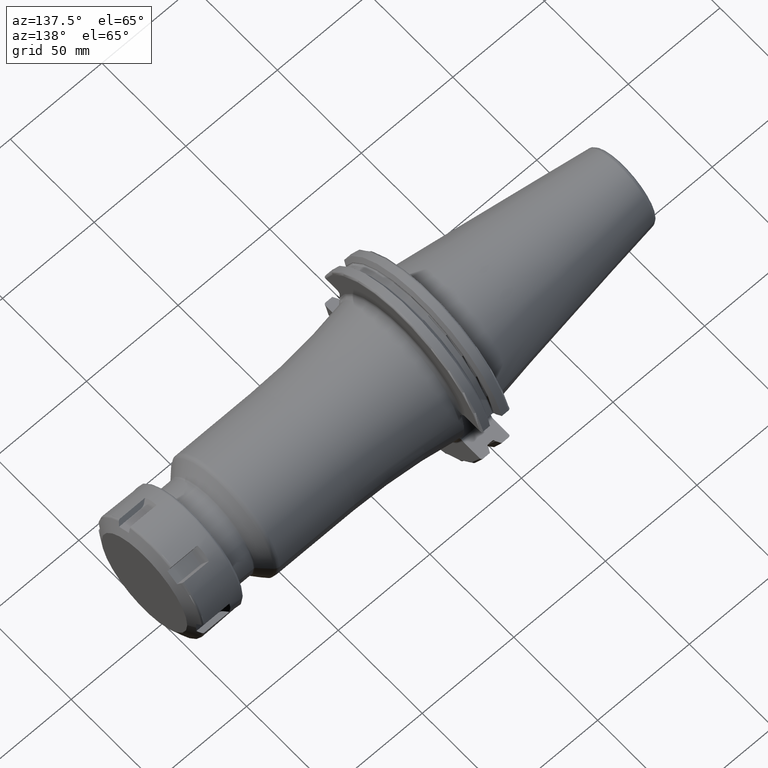
[diagram: clean part render]
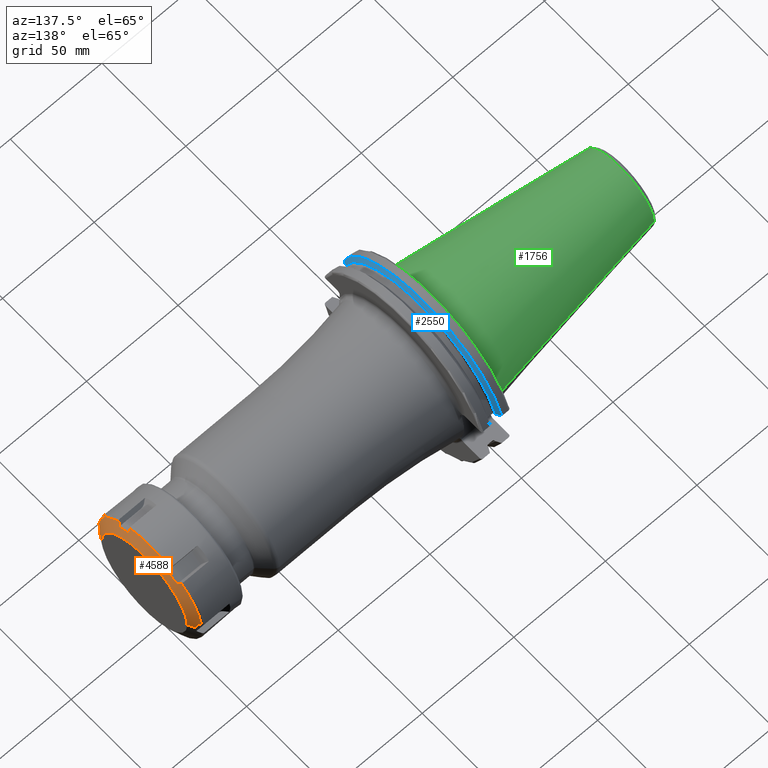
[diagram: same view with three faces highlighted in distinct colors, each labeled with its STEP entity id]
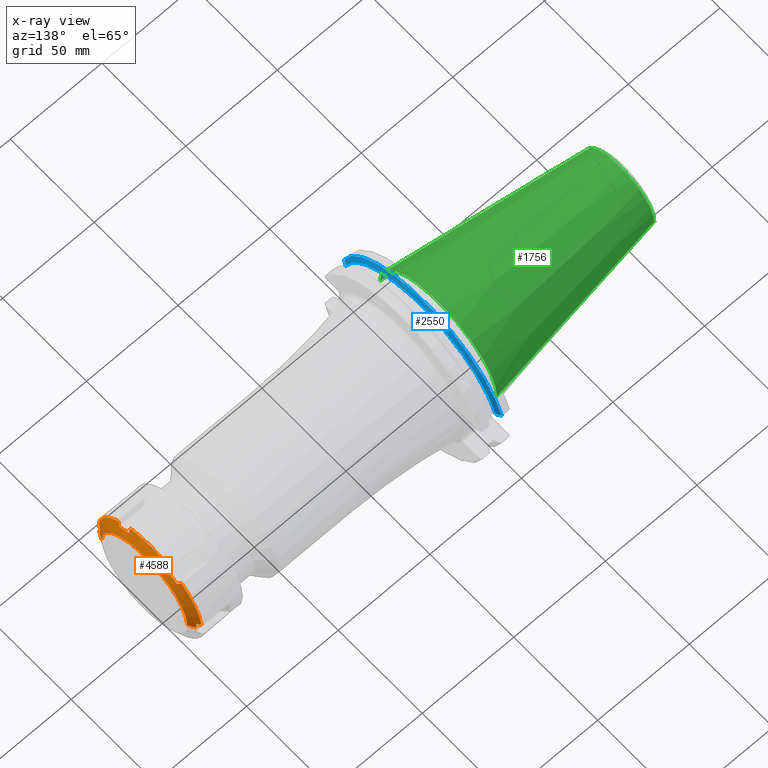
[diagram: x-ray of the same camera — body ghosted, the three highlighted faces saturated]
A machine part, auxiliary view with three faces highlighted in distinct colors.
The next image is the same camera in x-ray (body ghosted, the three faces saturated) — at least one of them is partly hidden behind the body in this view.
Their STEP definitions:

[orange] entity #4588 — the highlighted conical surface has half-angle 60 deg.
#3505=DIRECTION('',(-5.E-1,-8.660254037844E-1,0.E0));
#3506=VECTOR('',#3505,3.752776749692E0);
#3507=CARTESIAN_POINT('',(2.55E1,-2.55E1,0.E0));
#3508=LINE('',#3507,#3506);
#3514=DIRECTION('',(-5.E-1,8.660254037844E-1,0.E0));
#3515=VECTOR('',#3514,3.752776749692E0);
#3516=CARTESIAN_POINT('',(2.55E1,2.55E1,0.E0));
#3517=LINE('',#3516,#3515);
#3790=CARTESIAN_POINT('',(2.351130782476E1,-2.874999999997E1,3.35E0));
#3791=CARTESIAN_POINT('',(2.353617695757E1,-2.874999999997E1,2.977828809184E0));
#3792=CARTESIAN_POINT('',(2.357773662637E1,-2.874999999997E1,2.233458033279E0));
#3793=CARTESIAN_POINT('',(2.361525848375E1,-2.874999999997E1,1.116817767542E0));
#3794=CARTESIAN_POINT('',(2.362361162515E1,-2.874999999997E1,
3.722872262064E-1));
#3795=CARTESIAN_POINT('',(2.362361162515E1,-2.874999999997E1,0.E0));
#3797=CARTESIAN_POINT('',(2.239674230313E1,-3.063769284335E1,3.820654686622E0));
#3798=CARTESIAN_POINT('',(2.258533438069E1,-3.031843804101E1,3.741055524357E0));
#3799=CARTESIAN_POINT('',(2.295968976826E1,-2.968456909419E1,3.583014245782E0));
#3800=CARTESIAN_POINT('',(2.332838053240E1,-2.905997751876E1,3.427286075687E0));
#3801=CARTESIAN_POINT('',(2.351130782476E1,-2.874999999997E1,3.35E0));
#3803=CARTESIAN_POINT('',(2.239674230313E1,0.E0,0.E0));
#3804=DIRECTION('',(-1.E0,0.E0,0.E0));
#3805=DIRECTION('',(0.E0,-9.923139382473E-1,1.237459007814E-1));
#3806=AXIS2_PLACEMENT_3D('',#3803,#3804,#3805);
#3808=CARTESIAN_POINT('',(2.351130782476E1,-1.727618510266E1,2.322323035877E1));
#3809=CARTESIAN_POINT('',(2.332842823305E1,-1.749804769833E1,2.345297580209E1));
#3810=CARTESIAN_POINT('',(2.295978520802E1,-1.794515018410E1,2.391596397947E1));
#3811=CARTESIAN_POINT('',(2.258538211756E1,-1.839901028735E1,2.438594987460E1));
#3812=CARTESIAN_POINT('',(2.239674230313E1,-1.862763043938E1,2.462269297237E1));
#3814=CARTESIAN_POINT('',(2.351130782476E1,-1.147381489730E1,2.657323035877E1));
#3815=CARTESIAN_POINT('',(2.356105051412E1,-1.211849164162E1,2.620102606690E1));
#3816=CARTESIAN_POINT('',(2.362777625606E1,-1.340784245763E1,2.545661902620E1));
#3817=CARTESIAN_POINT('',(2.362777583851E1,-1.534217003691E1,2.433983447760E1));
#3818=CARTESIAN_POINT('',(2.356105010187E1,-1.663151370114E1,2.359543156598E1));
#3819=CARTESIAN_POINT('',(2.351130782476E1,-1.727618510266E1,2.322323035877E1));
#3821=CARTESIAN_POINT('',(2.239674230313E1,-1.201006240397E1,2.844334765900E1));
#3822=CARTESIAN_POINT('',(2.258533438069E1,-1.191936989944E1,2.812706530876E1));
#3823=CARTESIAN_POINT('',(2.295968976826E1,-1.173930318813E1,2.749909805885E1));
#3824=CARTESIAN_POINT('',(2.332838053240E1,-1.156187195180E1,2.688032180249E1));
#3825=CARTESIAN_POINT('',(2.351130782476E1,-1.147381489730E1,2.657323035877E1));
#3827=CARTESIAN_POINT('',(2.239674230313E1,0.E0,0.E0));
#3828=DIRECTION('',(-1.E0,0.E0,0.E0));
#3829=DIRECTION('',(0.E0,-3.889898754327E-1,9.212420294422E-1));
#3830=AXIS2_PLACEMENT_3D('',#3827,#3828,#3829);
#3832=CARTESIAN_POINT('',(2.351130782476E1,1.147381489730E1,2.657323035877E1));
#3833=CARTESIAN_POINT('',(2.332842823305E1,1.156184898978E1,2.688024172443E1));
#3834=CARTESIAN_POINT('',(2.295978520802E1,1.173925727016E1,2.749893792389E1));
#3835=CARTESIAN_POINT('',(2.258538211756E1,1.191934694315E1,2.812698525064E1));
#3836=CARTESIAN_POINT('',(2.239674230313E1,1.201006240397E1,2.844334765900E1));
#3838=CARTESIAN_POINT('',(2.351130782476E1,1.727618510266E1,2.322323035877E1));
#3839=CARTESIAN_POINT('',(2.356105051412E1,1.663150835835E1,2.359543465064E1));
#3840=CARTESIAN_POINT('',(2.362777625606E1,1.534215754233E1,2.433984169135E1));
#3841=CARTESIAN_POINT('',(2.362777583851E1,1.340782996305E1,2.545662623995E1));
#3842=CARTESIAN_POINT('',(2.356105010187E1,1.211848629883E1,2.620102915156E1));
#3843=CARTESIAN_POINT('',(2.351130782476E1,1.147381489730E1,2.657323035877E1));
#3845=CARTESIAN_POINT('',(2.239674230313E1,1.862763043938E1,2.462269297237E1));
#3846=CARTESIAN_POINT('',(2.258533438069E1,1.839906814157E1,2.438600978440E1));
#3847=CARTESIAN_POINT('',(2.295968976826E1,1.794526590606E1,2.391608381307E1));
#3848=CARTESIAN_POINT('',(2.332838053240E1,1.749810556696E1,2.345303572681E1));
#3849=CARTESIAN_POINT('',(2.351130782476E1,1.727618510266E1,2.322323035877E1));
#3851=CARTESIAN_POINT('',(2.239674230313E1,0.E0,0.E0));
#3852=DIRECTION('',(-1.E0,0.E0,0.E0));
#3853=DIRECTION('',(0.E0,6.033240628145E-1,7.974961286608E-1));
#3854=AXIS2_PLACEMENT_3D('',#3851,#3852,#3853);
#3856=CARTESIAN_POINT('',(2.351130782476E1,2.874999999997E1,3.35E0));
#3857=CARTESIAN_POINT('',(2.332842823305E1,2.905989668812E1,3.427265922344E0));
#3858=CARTESIAN_POINT('',(2.295978520802E1,2.968440745426E1,3.582973944421E0));
#3859=CARTESIAN_POINT('',(2.258538211756E1,3.031835723049E1,3.741035376033E0));
#3860=CARTESIAN_POINT('',(2.239674230313E1,3.063769284335E1,3.820654686622E0));
#3862=CARTESIAN_POINT('',(2.362361162515E1,2.874999999997E1,0.E0));
#3863=CARTESIAN_POINT('',(2.362361162515E1,2.874999999997E1,3.723033754199E-1));
#3864=CARTESIAN_POINT('',(2.361525781864E1,2.874999999997E1,1.116855572672E0));
#3865=CARTESIAN_POINT('',(2.357773435590E1,2.874999999997E1,2.233506677949E0));
#3866=CARTESIAN_POINT('',(2.353617556265E1,2.874999999997E1,2.977849684408E0));
#3867=CARTESIAN_POINT('',(2.351130782476E1,2.874999999997E1,3.35E0));
#3869=CARTESIAN_POINT('',(2.55E1,0.E0,0.E0));
#3870=DIRECTION('',(1.E0,0.E0,0.E0));
#3871=DIRECTION('',(0.E0,1.E0,0.E0));
#3872=AXIS2_PLACEMENT_3D('',#3869,#3870,#3871);
#4152=CARTESIAN_POINT('',(2.55E1,2.55E1,0.E0));
#4153=CARTESIAN_POINT('',(2.55E1,-2.55E1,0.E0));
#4154=VERTEX_POINT('',#4152);
#4155=VERTEX_POINT('',#4153);
#4164=VERTEX_POINT('',#3856);
#4165=VERTEX_POINT('',#3860);
#4166=VERTEX_POINT('',#3862);
#4190=VERTEX_POINT('',#3832);
#4191=VERTEX_POINT('',#3836);
#4192=VERTEX_POINT('',#3838);
#4193=VERTEX_POINT('',#3845);
#4205=VERTEX_POINT('',#3808);
#4206=VERTEX_POINT('',#3812);
#4207=VERTEX_POINT('',#3814);
#4208=VERTEX_POINT('',#3821);
#4220=VERTEX_POINT('',#3790);
#4221=VERTEX_POINT('',#3795);
#4222=VERTEX_POINT('',#3797);
#4557=CARTESIAN_POINT('',(2.394837115156E1,0.E0,0.E0));
#4558=DIRECTION('',(-1.E0,0.E0,0.E0));
#4559=DIRECTION('',(0.E0,1.E0,0.E0));
#4560=AXIS2_PLACEMENT_3D('',#4557,#4558,#4559);
#4561=CONICAL_SURFACE('',#4560,2.818749999998E1,6.E1);
#4563=ORIENTED_EDGE('',*,*,#4562,.F.);
#4565=ORIENTED_EDGE('',*,*,#4564,.F.);
#4566=ORIENTED_EDGE('',*,*,#4464,.T.);
#4568=ORIENTED_EDGE('',*,*,#4567,.F.);
#4570=ORIENTED_EDGE('',*,*,#4569,.F.);
#4572=ORIENTED_EDGE('',*,*,#4571,.F.);
#4573=ORIENTED_EDGE('',*,*,#4448,.T.);
#4575=ORIENTED_EDGE('',*,*,#4574,.F.);
#4576=ORIENTED_EDGE('',*,*,#4550,.F.);
#4577=ORIENTED_EDGE('',*,*,#4521,.F.);
#4578=ORIENTED_EDGE('',*,*,#4432,.T.);
#4580=ORIENTED_EDGE('',*,*,#4579,.F.);
#4582=ORIENTED_EDGE('',*,*,#4581,.F.);
#4583=ORIENTED_EDGE('',*,*,#4304,.F.);
#4584=ORIENTED_EDGE('',*,*,#4271,.T.);
#4585=ORIENTED_EDGE('',*,*,#4301,.T.);
#4586=EDGE_LOOP('',(#4563,#4565,#4566,#4568,#4570,#4572,#4573,#4575,#4576,#4577,
#4578,#4580,#4582,#4583,#4584,#4585));
#4587=FACE_OUTER_BOUND('',#4586,.F.);
#4588=ADVANCED_FACE('',(#4587),#4561,.T.);
#3796=B_SPLINE_CURVE_WITH_KNOTS('',3,(#3790,#3791,#3792,#3793,#3794,#3795),
.UNSPECIFIED.,.F.,.F.,(4,1,1,4),(0.E0,3.333333333333E-1,6.666666666667E-1,1.E0),
.UNSPECIFIED.);
#3802=B_SPLINE_CURVE_WITH_KNOTS('',3,(#3797,#3798,#3799,#3800,#3801),
.UNSPECIFIED.,.F.,.F.,(4,1,4),(0.E0,5.E-1,1.E0),.UNSPECIFIED.);
#3807=CIRCLE('',#3806,3.087499999997E1);
#3813=B_SPLINE_CURVE_WITH_KNOTS('',3,(#3808,#3809,#3810,#3811,#3812),
.UNSPECIFIED.,.F.,.F.,(4,1,4),(0.E0,5.E-1,1.E0),.UNSPECIFIED.);
#3820=B_SPLINE_CURVE_WITH_KNOTS('',3,(#3814,#3815,#3816,#3817,#3818,#3819),
.UNSPECIFIED.,.F.,.F.,(4,1,1,4),(0.E0,3.333333333333E-1,6.666666666667E-1,1.E0),
.UNSPECIFIED.);
#3826=B_SPLINE_CURVE_WITH_KNOTS('',3,(#3821,#3822,#3823,#3824,#3825),
.UNSPECIFIED.,.F.,.F.,(4,1,4),(0.E0,5.E-1,1.E0),.UNSPECIFIED.);
#3831=CIRCLE('',#3830,3.087499999997E1);
#3837=B_SPLINE_CURVE_WITH_KNOTS('',3,(#3832,#3833,#3834,#3835,#3836),
.UNSPECIFIED.,.F.,.F.,(4,1,4),(0.E0,5.E-1,1.E0),.UNSPECIFIED.);
#3844=B_SPLINE_CURVE_WITH_KNOTS('',3,(#3838,#3839,#3840,#3841,#3842,#3843),
.UNSPECIFIED.,.F.,.F.,(4,1,1,4),(0.E0,3.333333333333E-1,6.666666666667E-1,1.E0),
.UNSPECIFIED.);
#3850=B_SPLINE_CURVE_WITH_KNOTS('',3,(#3845,#3846,#3847,#3848,#3849),
.UNSPECIFIED.,.F.,.F.,(4,1,4),(0.E0,5.E-1,1.E0),.UNSPECIFIED.);
#3855=CIRCLE('',#3854,3.087499999997E1);
#3861=B_SPLINE_CURVE_WITH_KNOTS('',3,(#3856,#3857,#3858,#3859,#3860),
.UNSPECIFIED.,.F.,.F.,(4,1,4),(0.E0,5.E-1,1.E0),.UNSPECIFIED.);
#3868=B_SPLINE_CURVE_WITH_KNOTS('',3,(#3862,#3863,#3864,#3865,#3866,#3867),
.UNSPECIFIED.,.F.,.F.,(4,1,1,4),(0.E0,3.333333333333E-1,6.666666666667E-1,1.E0),
.UNSPECIFIED.);
#3873=CIRCLE('',#3872,2.55E1);
#4271=EDGE_CURVE('',#4154,#4155,#3873,.T.);
#4301=EDGE_CURVE('',#4155,#4221,#3508,.T.);
#4304=EDGE_CURVE('',#4154,#4166,#3517,.T.);
#4432=EDGE_CURVE('',#4193,#4165,#3855,.T.);
#4448=EDGE_CURVE('',#4208,#4191,#3831,.T.);
#4464=EDGE_CURVE('',#4222,#4206,#3807,.T.);
#4521=EDGE_CURVE('',#4193,#4192,#3850,.T.);
#4550=EDGE_CURVE('',#4192,#4190,#3844,.T.);
#4562=EDGE_CURVE('',#4220,#4221,#3796,.T.);
#4564=EDGE_CURVE('',#4222,#4220,#3802,.T.);
#4567=EDGE_CURVE('',#4205,#4206,#3813,.T.);
#4569=EDGE_CURVE('',#4207,#4205,#3820,.T.);
#4571=EDGE_CURVE('',#4208,#4207,#3826,.T.);
#4574=EDGE_CURVE('',#4190,#4191,#3837,.T.);
#4579=EDGE_CURVE('',#4164,#4165,#3861,.T.);
#4581=EDGE_CURVE('',#4166,#4164,#3868,.T.);

[blue] entity #2550 — the highlighted conical surface has half-angle 60 deg.
#652=CARTESIAN_POINT('',(7.934621614173E0,0.E0,0.E0));
#653=DIRECTION('',(1.E0,0.E0,0.E0));
#654=DIRECTION('',(0.E0,9.643354064066E-1,2.646832521159E-1));
#655=AXIS2_PLACEMENT_3D('',#652,#653,#654);
#679=CARTESIAN_POINT('',(7.934621614173E0,4.699929686974E1,1.29E1));
#680=CARTESIAN_POINT('',(8.085480915039E0,4.672833723043E1,1.29E1));
#681=CARTESIAN_POINT('',(8.384988643814E0,4.619006057422E1,1.29E1));
#682=CARTESIAN_POINT('',(8.827579780447E0,4.539363402665E1,1.29E1));
#683=CARTESIAN_POINT('',(9.118260754177E0,4.486988275438E1,1.29E1));
#684=CARTESIAN_POINT('',(9.2625E0,4.460981716077E1,1.29E1));
#686=CARTESIAN_POINT('',(9.2625E0,-4.460981716077E1,1.29E1));
#687=CARTESIAN_POINT('',(9.118283773553E0,-4.486984125009E1,1.29E1));
#688=CARTESIAN_POINT('',(8.827633549554E0,-4.539353719098E1,1.29E1));
#689=CARTESIAN_POINT('',(8.385043355543E0,-4.618996220278E1,1.29E1));
#690=CARTESIAN_POINT('',(8.085504386120E0,-4.672829507383E1,1.29E1));
#691=CARTESIAN_POINT('',(7.934621614173E0,-4.699929686974E1,1.29E1));
#701=CARTESIAN_POINT('',(9.2625E0,0.E0,0.E0));
#702=DIRECTION('',(1.E0,0.E0,0.E0));
#703=DIRECTION('',(0.E0,9.606411165078E-1,2.777924499957E-1));
#704=AXIS2_PLACEMENT_3D('',#701,#702,#703);
#1484=CARTESIAN_POINT('',(9.2625E0,4.460981716077E1,1.29E1));
#1486=VERTEX_POINT('',#1484);
#1496=CARTESIAN_POINT('',(9.2625E0,-4.460981716077E1,1.29E1));
#1498=VERTEX_POINT('',#1496);
#1522=VERTEX_POINT('',#679);
#1523=VERTEX_POINT('',#691);
#2538=CARTESIAN_POINT('',(8.598560807087E0,0.E0,0.E0));
#2539=DIRECTION('',(-1.E0,0.E0,0.E0));
#2540=DIRECTION('',(0.E0,1.E0,0.E0));
#2541=AXIS2_PLACEMENT_3D('',#2538,#2539,#2540);
#2542=CONICAL_SURFACE('',#2541,4.758752358474E1,6.E1);
#2543=ORIENTED_EDGE('',*,*,#2477,.T.);
#2545=ORIENTED_EDGE('',*,*,#2544,.T.);
#2546=ORIENTED_EDGE('',*,*,#2405,.T.);
#2547=ORIENTED_EDGE('',*,*,#2518,.F.);
#2548=EDGE_LOOP('',(#2543,#2545,#2546,#2547));
#2549=FACE_OUTER_BOUND('',#2548,.F.);
#2550=ADVANCED_FACE('',(#2549),#2542,.T.);
#656=CIRCLE('',#655,4.87375E1);
#685=B_SPLINE_CURVE_WITH_KNOTS('',3,(#679,#680,#681,#682,#683,#684),
.UNSPECIFIED.,.F.,.F.,(4,1,1,4),(0.E0,3.333333333333E-1,6.666666666667E-1,1.E0),
.UNSPECIFIED.);
#692=B_SPLINE_CURVE_WITH_KNOTS('',3,(#686,#687,#688,#689,#690,#691),
.UNSPECIFIED.,.F.,.F.,(4,1,1,4),(0.E0,3.333333333333E-1,6.666666666667E-1,1.E0),
.UNSPECIFIED.);
#705=CIRCLE('',#704,4.643754716948E1);
#2405=EDGE_CURVE('',#1498,#1523,#692,.T.);
#2477=EDGE_CURVE('',#1522,#1486,#685,.T.);
#2518=EDGE_CURVE('',#1522,#1523,#656,.T.);
#2544=EDGE_CURVE('',#1486,#1498,#705,.T.);

[green] entity #1756 — the highlighted conical surface has half-angle 8.298 deg.
#37=CARTESIAN_POINT('',(-9.967471700563E1,0.E0,0.E0));
#38=DIRECTION('',(1.E0,0.E0,0.E0));
#39=DIRECTION('',(0.E0,1.E0,0.E0));
#40=AXIS2_PLACEMENT_3D('',#37,#38,#39);
#42=CARTESIAN_POINT('',(-4.896823332305E-1,0.E0,0.E0));
#43=DIRECTION('',(1.E0,0.E0,0.E0));
#44=DIRECTION('',(0.E0,1.E0,0.E0));
#45=AXIS2_PLACEMENT_3D('',#42,#43,#44);
#47=DIRECTION('',(-9.895312636440E-1,-1.443186691705E-1,0.E0));
#48=VECTOR('',#47,1.002343617797E2);
#49=CARTESIAN_POINT('',(-4.896823332305E-1,3.485358204157E1,0.E0));
#50=LINE('',#49,#48);
#51=DIRECTION('',(-9.895312636440E-1,1.443186691705E-1,0.E0));
#52=VECTOR('',#51,1.002343617797E2);
#53=CARTESIAN_POINT('',(-4.896823332305E-1,-3.485358204157E1,0.E0));
#54=LINE('',#53,#52);
#1412=CARTESIAN_POINT('',(-9.967471700563E1,2.038789234437E1,0.E0));
#1414=VERTEX_POINT('',#1412);
#1416=CARTESIAN_POINT('',(-9.967471700563E1,-2.038789234437E1,0.E0));
#1418=VERTEX_POINT('',#1416);
#1480=CARTESIAN_POINT('',(-4.896823332305E-1,3.485358204157E1,0.E0));
#1481=VERTEX_POINT('',#1480);
#1482=CARTESIAN_POINT('',(-4.896823332305E-1,-3.485358204157E1,0.E0));
#1483=VERTEX_POINT('',#1482);
#1742=CARTESIAN_POINT('',(-5.008219966943E1,0.E0,0.E0));
#1743=DIRECTION('',(1.E0,0.E0,0.E0));
#1744=DIRECTION('',(0.E0,-1.E0,0.E0));
#1745=AXIS2_PLACEMENT_3D('',#1742,#1743,#1744);
#1746=CONICAL_SURFACE('',#1745,2.762073719297E1,8.297826828206E0);
#1748=ORIENTED_EDGE('',*,*,#1747,.F.);
#1750=ORIENTED_EDGE('',*,*,#1749,.T.);
#1752=ORIENTED_EDGE('',*,*,#1751,.T.);
#1753=ORIENTED_EDGE('',*,*,#1735,.F.);
#1754=EDGE_LOOP('',(#1748,#1750,#1752,#1753));
#1755=FACE_OUTER_BOUND('',#1754,.F.);
#1756=ADVANCED_FACE('',(#1755),#1746,.T.);
#41=CIRCLE('',#40,2.038789234437E1);
#46=CIRCLE('',#45,3.485358204157E1);
#1735=EDGE_CURVE('',#1414,#1418,#41,.T.);
#1747=EDGE_CURVE('',#1481,#1414,#50,.T.);
#1749=EDGE_CURVE('',#1481,#1483,#46,.T.);
#1751=EDGE_CURVE('',#1483,#1418,#54,.T.);